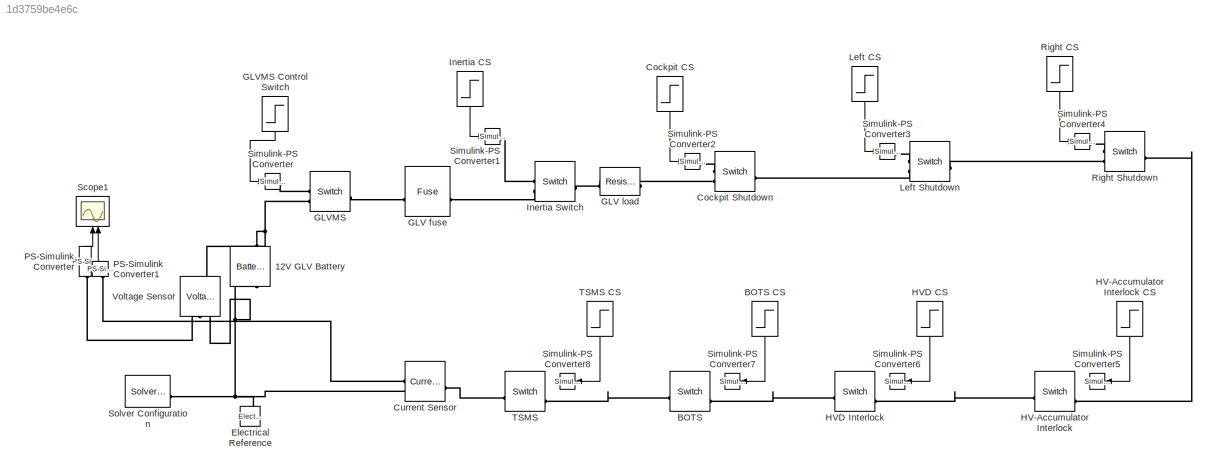
MODEL slx_1d3759be4e6c
KIND model
CONFIG AbsTol = auto
CONFIG EnableMultiTasking = off
CONFIG FixedStep = auto
CONFIG MaxStep = auto
CONFIG MinStep = auto
CONFIG RelTol = 1e-3
CONFIG SampleTimeConstraint = Unconstrained
CONFIG SolverName = ode23tb
CONFIG StartTime = 0.0
CONFIG StopTime = 10.0
BLOCK [Step]  HV-Accumulator Interlock CS
  Before = 1
  NameLocation = left
  SampleTime = 0
  Time = 0
BLOCK [Reference] 12V GLV Battery  REF=batteryecm_lib/Battery
  LibrarySourceBlock = batt_lib/Cells/Battery
  NameLocation = right
  SourceBlock = batteryecm_lib/Battery
  SourceType = Battery
BLOCK [Reference] BOTS  REF=fl_lib/Electrical/Electrical Elements/Switch
  SourceBlock = fl_lib/Electrical/Electrical Elements/Switch
  SourceType = Switch
BLOCK [Step] BOTS CS
  Before = 1
  NameLocation = left
  SampleTime = 0
  Time = 0
BLOCK [Step] Cockpit CS
  Before = 1
  NameLocation = left
  SampleTime = 0
  Time = 0
BLOCK [Reference] Cockpit Shutdown  REF=fl_lib/Electrical/Electrical Elements/Switch
  SourceBlock = fl_lib/Electrical/Electrical Elements/Switch
  SourceType = Switch
BLOCK [Reference] Current Sensor  REF=fl_lib/Electrical/Electrical Sensors/Current Sensor
  SourceBlock = fl_lib/Electrical/Electrical Sensors/Current Sensor
  SourceType = Current Sensor
BLOCK [Reference] Electrical Reference  REF=fl_lib/Electrical/Electrical Elements/Electrical Reference
  NameLocation = right
  SourceBlock = fl_lib/Electrical/Electrical Elements/Electrical Reference
  SourceType = Electrical Reference
BLOCK [Reference] GLV fuse  REF=ee_lib/Switches & Breakers/Fuse
  SourceBlock = ee_lib/Switches & Breakers/Fuse
  SourceType = Fuse
BLOCK [Reference] GLV load  REF=fl_lib/Electrical/Electrical Elements/Resistor
  NameLocation = top
  SourceBlock = fl_lib/Electrical/Electrical Elements/Resistor
  SourceType = Resistor
BLOCK [Reference] GLVMS  REF=fl_lib/Electrical/Electrical Elements/Switch
  SourceBlock = fl_lib/Electrical/Electrical Elements/Switch
  SourceType = Switch
BLOCK [Step] GLVMS Control Switch
  Before = 1
  NameLocation = left
  SampleTime = 0
  Time = 0
BLOCK [Reference] HV-Accumulator Interlock  REF=fl_lib/Electrical/Electrical Elements/Switch
  SourceBlock = fl_lib/Electrical/Electrical Elements/Switch
  SourceType = Switch
BLOCK [Step] HVD CS
  Before = 1
  NameLocation = left
  SampleTime = 0
  Time = 0
BLOCK [Reference] HVD Interlock  REF=fl_lib/Electrical/Electrical Elements/Switch
  SourceBlock = fl_lib/Electrical/Electrical Elements/Switch
  SourceType = Switch
BLOCK [Step] Inertia CS
  Before = 1
  NameLocation = left
  SampleTime = 0
  Time = 0
BLOCK [Reference] Inertia Switch  REF=fl_lib/Electrical/Electrical Elements/Switch
  SourceBlock = fl_lib/Electrical/Electrical Elements/Switch
  SourceType = Switch
BLOCK [Step] Left CS
  Before = 1
  NameLocation = left
  SampleTime = 0
  Time = 0
BLOCK [Reference] Left Shutdown  REF=fl_lib/Electrical/Electrical Elements/Switch
  SourceBlock = fl_lib/Electrical/Electrical Elements/Switch
  SourceType = Switch
BLOCK [Reference] PS-Simulink Converter  REF=nesl_utility/PS-Simulink
Converter
  NameLocation = right
  SourceBlock = nesl_utility/PS-Simulink\nConverter
  SourceType = PS-Simulink\nConverter
BLOCK [Reference] PS-Simulink Converter1  REF=nesl_utility/PS-Simulink
Converter
  NameLocation = right
  SourceBlock = nesl_utility/PS-Simulink\nConverter
  SourceType = PS-Simulink\nConverter
BLOCK [Step] Right CS
  Before = 1
  NameLocation = left
  SampleTime = 0
  Time = 0
BLOCK [Reference] Right Shutdown  REF=fl_lib/Electrical/Electrical Elements/Switch
  SourceBlock = fl_lib/Electrical/Electrical Elements/Switch
  SourceType = Switch
BLOCK [Scope] Scope1
  Floating = off
  NameLocation = right
  NumInputPorts = 2
  ScopeSpecificationString = Simulink.scopes.TimeScopeBlockCfg('CurrentConfiguration', extmgr.ConfigurationSet(extmgr.Configuration('Core','General UI',true),extmgr.Configuration('Core','Source UI',true),extmgr.Configuration('Sources','WiredSimulink',true,'DataLoggingVariableName','ScopeData1'),extmgr.Configuration('Visuals','Time Domain',true,'SerializedDisplays',{struct('MinYLimReal','-74.97299','MaxYLimReal','674.76276','Y...<+1726ch>
BLOCK [Reference] Simulink-PS Converter  REF=nesl_utility/Simulink-PS
Converter
  SourceBlock = nesl_utility/Simulink-PS\nConverter
  SourceType = Simulink-PS\nConverter
BLOCK [Reference] Simulink-PS Converter1  REF=nesl_utility/Simulink-PS
Converter
  SourceBlock = nesl_utility/Simulink-PS\nConverter
  SourceType = Simulink-PS\nConverter
BLOCK [Reference] Simulink-PS Converter2  REF=nesl_utility/Simulink-PS
Converter
  SourceBlock = nesl_utility/Simulink-PS\nConverter
  SourceType = Simulink-PS\nConverter
BLOCK [Reference] Simulink-PS Converter3  REF=nesl_utility/Simulink-PS
Converter
  SourceBlock = nesl_utility/Simulink-PS\nConverter
  SourceType = Simulink-PS\nConverter
BLOCK [Reference] Simulink-PS Converter4  REF=nesl_utility/Simulink-PS
Converter
  SourceBlock = nesl_utility/Simulink-PS\nConverter
  SourceType = Simulink-PS\nConverter
BLOCK [Reference] Simulink-PS Converter5  REF=nesl_utility/Simulink-PS
Converter
  SourceBlock = nesl_utility/Simulink-PS\nConverter
  SourceType = Simulink-PS\nConverter
BLOCK [Reference] Simulink-PS Converter6  REF=nesl_utility/Simulink-PS
Converter
  SourceBlock = nesl_utility/Simulink-PS\nConverter
  SourceType = Simulink-PS\nConverter
BLOCK [Reference] Simulink-PS Converter7  REF=nesl_utility/Simulink-PS
Converter
  SourceBlock = nesl_utility/Simulink-PS\nConverter
  SourceType = Simulink-PS\nConverter
BLOCK [Reference] Simulink-PS Converter8  REF=nesl_utility/Simulink-PS
Converter
  SourceBlock = nesl_utility/Simulink-PS\nConverter
  SourceType = Simulink-PS\nConverter
BLOCK [Reference] Solver Configuration  REF=nesl_utility/Solver
Configuration
  SourceBlock = nesl_utility/Solver\nConfiguration
  SourceType = Solver\nConfiguration
BLOCK [Reference] TSMS  REF=fl_lib/Electrical/Electrical Elements/Switch
  SourceBlock = fl_lib/Electrical/Electrical Elements/Switch
  SourceType = Switch
BLOCK [Step] TSMS CS
  Before = 1
  NameLocation = left
  SampleTime = 0
  Time = 0
BLOCK [Reference] Voltage Sensor  REF=fl_lib/Electrical/Electrical Sensors/Voltage Sensor
  NameLocation = right
  SourceBlock = fl_lib/Electrical/Electrical Sensors/Voltage Sensor
  SourceType = Voltage Sensor
LINE  HV-Accumulator Interlock CS:1 -> Simulink-PS Converter5:1
LINE BOTS CS:1 -> Simulink-PS Converter7:1
LINE Cockpit CS:1 -> Simulink-PS Converter2:1
LINE GLVMS Control Switch:1 -> Simulink-PS Converter:1
LINE HVD CS:1 -> Simulink-PS Converter6:1
LINE Inertia CS:1 -> Simulink-PS Converter1:1
LINE Left CS:1 -> Simulink-PS Converter3:1
LINE PS-Simulink Converter1:1 -> Scope1:2
LINE PS-Simulink Converter:1 -> Scope1:1
LINE Right CS:1 -> Simulink-PS Converter4:1
LINE TSMS CS:1 -> Simulink-PS Converter8:1
PNET net1: 12V GLV Battery:LConn1 -- GLVMS:RConn2 -- Voltage Sensor:LConn1
PNET net2: 12V GLV Battery:RConn1 -- Current Sensor:RConn2 -- Electrical Reference:LConn1 -- Solver Configuration:RConn1 -- Voltage Sensor:RConn2
PLINE BOTS:LConn1 -- TSMS:RConn2
PLINE BOTS:RConn2 -- HVD Interlock:LConn1
PLINE Cockpit Shutdown:LConn1 -- Left Shutdown:RConn2
PLINE Cockpit Shutdown:RConn1 -- Simulink-PS Converter2:RConn1
PLINE Cockpit Shutdown:RConn2 -- GLV load:LConn1
PLINE Current Sensor:LConn1 -- TSMS:LConn1
PLINE Current Sensor:RConn1 -- PS-Simulink Converter1:LConn1
PLINE GLV fuse:LConn1 -- GLVMS:LConn1
PLINE GLV fuse:RConn1 -- Inertia Switch:RConn2
PLINE GLV load:RConn1 -- Inertia Switch:LConn1
PLINE GLVMS:RConn1 -- Simulink-PS Converter:RConn1
PLINE HV-Accumulator Interlock:LConn1 -- HVD Interlock:RConn2
PLINE HV-Accumulator Interlock:RConn2 -- Right Shutdown:LConn1
PLINE Inertia Switch:RConn1 -- Simulink-PS Converter1:RConn1
PLINE Left Shutdown:LConn1 -- Right Shutdown:RConn2
PLINE Left Shutdown:RConn1 -- Simulink-PS Converter3:RConn1
PLINE PS-Simulink Converter:LConn1 -- Voltage Sensor:RConn1
PLINE Right Shutdown:RConn1 -- Simulink-PS Converter4:RConn1
note: PNET lines group multi-terminal physical nets as a canonical sorted terminal list (undirected conserving connections); 2-terminal nets keep the pairwise PLINE form
